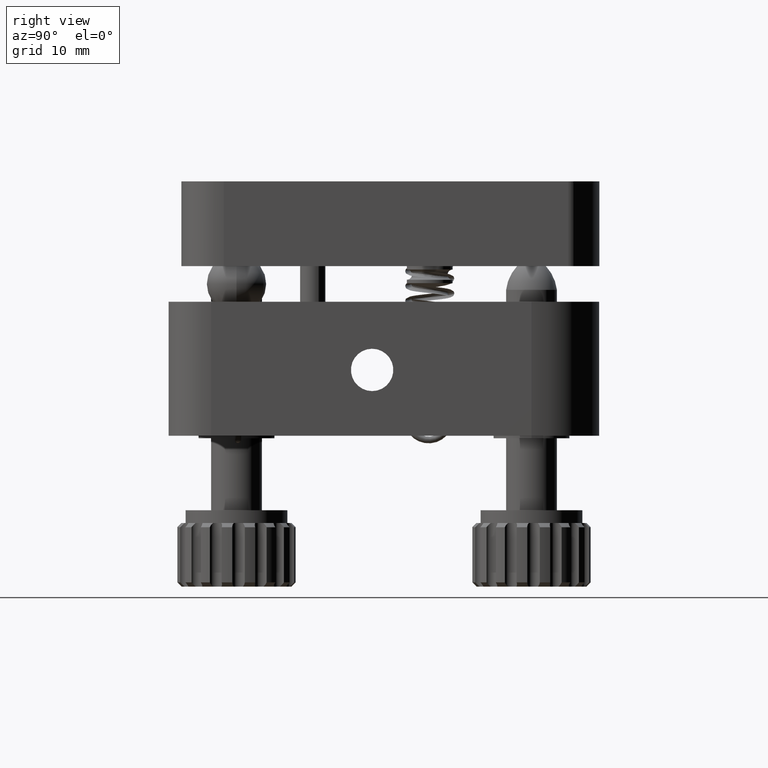
[diagram: clean part render]
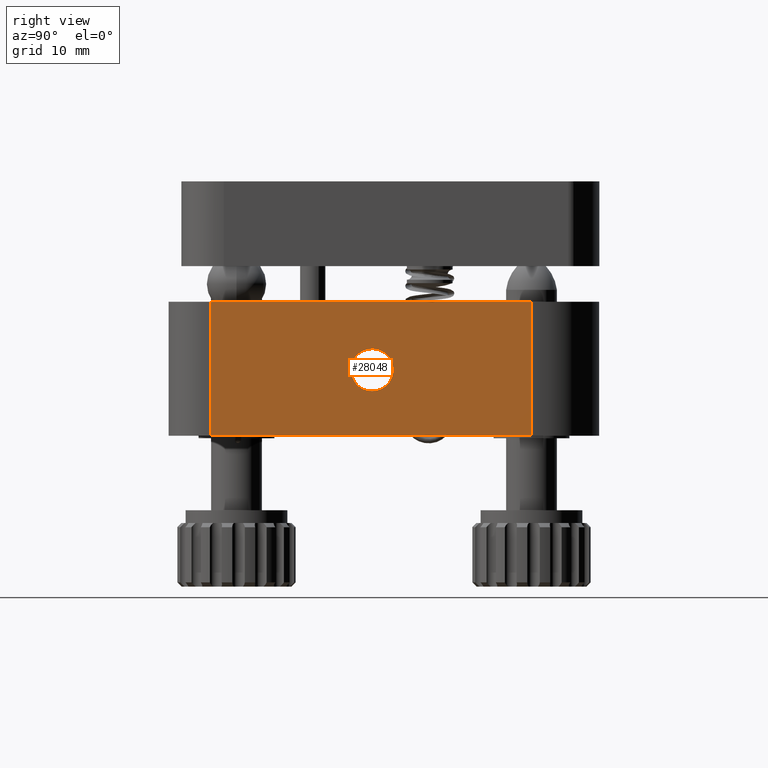
[diagram: same view with one face highlighted and labeled with its STEP entity id]
A machine part, right view. The second image highlights one B-rep face of the part: STEP entity #28048.
In plain terms, the highlighted planar face has unit normal (1, 0, -0).
Its self-contained STEP definition (entity closure, byte-faithful):
#141 = EDGE_CURVE ( 'NONE', #28508, #8556, #34048, .T. ) ;
#685 = CARTESIAN_POINT ( 'NONE',  ( 0.0000000000000000000, 5.000000000000035500, 0.0000000000000000000 ) ) ;
#894 = CARTESIAN_POINT ( 'NONE',  ( 1.249139735130297400E-015, 24.00000000000000000, 5.261614998699440300 ) ) ;
#2332 = ORIENTED_EDGE ( 'NONE', *, *, #141, .T. ) ;
#2671 = FACE_BOUND ( 'NONE', #14277, .T. ) ;
#2905 = AXIS2_PLACEMENT_3D ( 'NONE', #23373, #6637, #26167 ) ;
#3456 = PLANE ( 'NONE',  #17230 ) ;
#3676 = DIRECTION ( 'NONE',  ( 1.000000000000000000, 0.0000000000000000000, -0.0000000000000000000 ) ) ;
#3713 = CARTESIAN_POINT ( 'NONE',  ( 0.0000000000000000000, 42.79999999999999700, 15.80000000000000100 ) ) ;
#4117 = AXIS2_PLACEMENT_3D ( 'NONE', #6391, #25890, #9177 ) ;
#4366 = CARTESIAN_POINT ( 'NONE',  ( 0.0000000000000000000, 5.000000000000035500, 15.80000000000000100 ) ) ;
#6391 = CARTESIAN_POINT ( 'NONE',  ( 1.249139735130297400E-015, 24.00000000000000000, 7.761614998699428700 ) ) ;
#6637 = DIRECTION ( 'NONE',  ( 1.000000000000000000, -0.0000000000000000000, -0.0000000000000000000 ) ) ;
#8411 = CARTESIAN_POINT ( 'NONE',  ( 0.0000000000000000000, 42.79999999999999700, 15.80000000000000100 ) ) ;
#8556 = VERTEX_POINT ( 'NONE', #29597 ) ;
#9015 = CARTESIAN_POINT ( 'NONE',  ( 0.0000000000000000000, 5.000000000000036400, 15.80000000000000100 ) ) ;
#9177 = DIRECTION ( 'NONE',  ( 0.0000000000000000000, 0.0000000000000000000, -1.000000000000000000 ) ) ;
#9697 = VERTEX_POINT ( 'NONE', #21202 ) ;
#10027 = ORIENTED_EDGE ( 'NONE', *, *, #14882, .F. ) ;
#10090 = CIRCLE ( 'NONE', #4117, 2.499999999999988500 ) ;
#10794 = ORIENTED_EDGE ( 'NONE', *, *, #30670, .F. ) ;
#10830 = ORIENTED_EDGE ( 'NONE', *, *, #28044, .F. ) ;
#11022 = VECTOR ( 'NONE', #31688, 1000.000000000000000 ) ;
#11707 = DIRECTION ( 'NONE',  ( 0.0000000000000000000, 0.0000000000000000000, -1.000000000000000000 ) ) ;
#12514 = VECTOR ( 'NONE', #11707, 1000.000000000000000 ) ;
#12863 = DIRECTION ( 'NONE',  ( 0.0000000000000000000, 1.000000000000000000, 0.0000000000000000000 ) ) ;
#13638 = EDGE_CURVE ( 'NONE', #9697, #28508, #33914, .T. ) ;
#13639 = CARTESIAN_POINT ( 'NONE',  ( 0.0000000000000000000, 5.000000000000036400, 0.0000000000000000000 ) ) ;
#14243 = EDGE_CURVE ( 'NONE', #9697, #31769, #15922, .T. ) ;
#14277 = EDGE_LOOP ( 'NONE', ( #10027, #10830 ) ) ;
#14882 = EDGE_CURVE ( 'NONE', #24697, #24751, #18736, .T. ) ;
#15840 = ORIENTED_EDGE ( 'NONE', *, *, #13638, .T. ) ;
#15922 = LINE ( 'NONE', #4366, #30772 ) ;
#17230 = AXIS2_PLACEMENT_3D ( 'NONE', #20384, #3676, #23221 ) ;
#18444 = LINE ( 'NONE', #3713, #11022 ) ;
#18736 = CIRCLE ( 'NONE', #2905, 2.499999999999988500 ) ;
#18986 = EDGE_LOOP ( 'NONE', ( #2332, #10794, #27485, #15840 ) ) ;
#20384 = CARTESIAN_POINT ( 'NONE',  ( 0.0000000000000000000, 5.000000000000035500, 15.80000000000000100 ) ) ;
#21202 = CARTESIAN_POINT ( 'NONE',  ( 0.0000000000000000000, 5.000000000000036400, 15.80000000000000100 ) ) ;
#23221 = DIRECTION ( 'NONE',  ( 0.0000000000000000000, 0.0000000000000000000, 1.000000000000000000 ) ) ;
#23373 = CARTESIAN_POINT ( 'NONE',  ( 1.249139735130297400E-015, 24.00000000000000000, 7.761614998699428700 ) ) ;
#23920 = DIRECTION ( 'NONE',  ( 0.0000000000000000000, 1.000000000000000000, 0.0000000000000000000 ) ) ;
#24697 = VERTEX_POINT ( 'NONE', #894 ) ;
#24751 = VERTEX_POINT ( 'NONE', #34378 ) ;
#25890 = DIRECTION ( 'NONE',  ( 1.000000000000000000, -0.0000000000000000000, -0.0000000000000000000 ) ) ;
#26167 = DIRECTION ( 'NONE',  ( 0.0000000000000000000, 0.0000000000000000000, -1.000000000000000000 ) ) ;
#26605 = VECTOR ( 'NONE', #12863, 1000.000000000000000 ) ;
#27485 = ORIENTED_EDGE ( 'NONE', *, *, #14243, .F. ) ;
#28044 = EDGE_CURVE ( 'NONE', #24751, #24697, #10090, .T. ) ;
#28048 = ADVANCED_FACE ( 'NONE', ( #2671, #31506 ), #3456, .T. ) ;
#28508 = VERTEX_POINT ( 'NONE', #13639 ) ;
#29597 = CARTESIAN_POINT ( 'NONE',  ( 0.0000000000000000000, 42.79999999999999700, 0.0000000000000000000 ) ) ;
#30670 = EDGE_CURVE ( 'NONE', #31769, #8556, #18444, .T. ) ;
#30772 = VECTOR ( 'NONE', #23920, 1000.000000000000000 ) ;
#31506 = FACE_OUTER_BOUND ( 'NONE', #18986, .T. ) ;
#31688 = DIRECTION ( 'NONE',  ( 0.0000000000000000000, 0.0000000000000000000, -1.000000000000000000 ) ) ;
#31769 = VERTEX_POINT ( 'NONE', #8411 ) ;
#33914 = LINE ( 'NONE', #9015, #12514 ) ;
#34048 = LINE ( 'NONE', #685, #26605 ) ;
#34378 = CARTESIAN_POINT ( 'NONE',  ( 1.249139735130297400E-015, 24.00000000000000000, 10.26161499869941600 ) ) ;